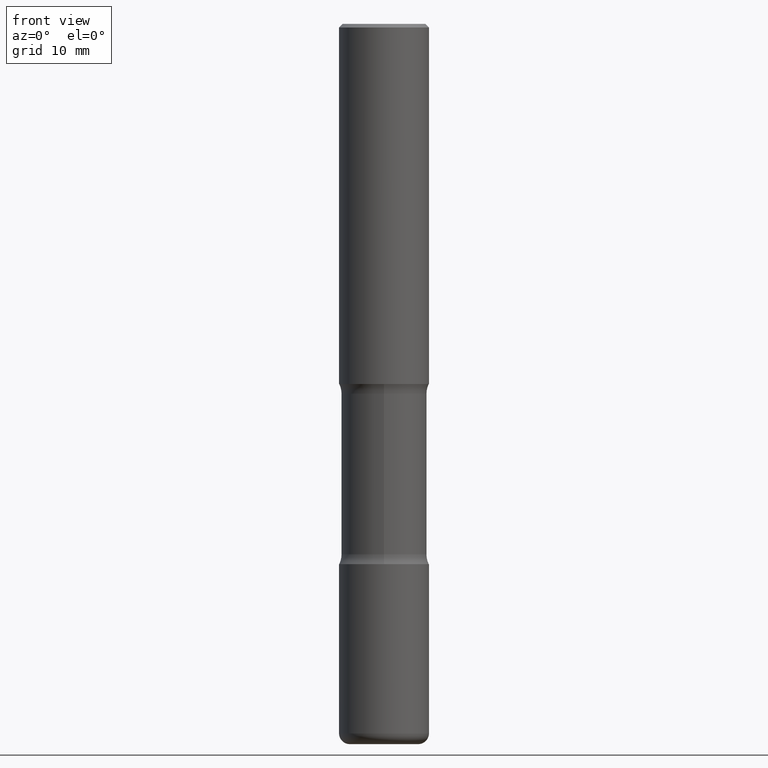
[diagram: clean part render]
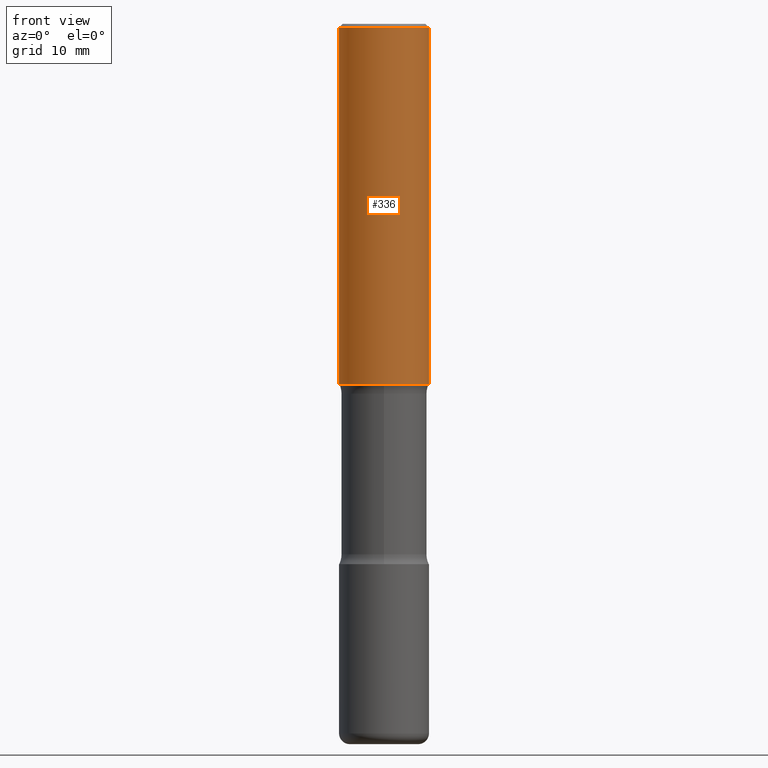
[diagram: same view with one face highlighted and labeled with its STEP entity id]
A machine part, front view. The second image highlights one B-rep face of the part: STEP entity #336.
In plain terms, the highlighted cylindrical surface (partial cylindrical patch) has radius 6.35 mm, axis along (-0, 0, 1).
Its self-contained STEP definition (entity closure, byte-faithful):
#29 = FACE_OUTER_BOUND ( 'NONE', #460, .T. ) ;
#33 = ORIENTED_EDGE ( 'NONE', *, *, #485, .T. ) ;
#42 = CARTESIAN_POINT ( 'NONE',  ( 0.2499999999999999167, -1.784954126219745400E-15, -0.02000000000000006981 ) ) ;
#43 = CIRCLE ( 'NONE', #137, 0.2499999999999999167 ) ;
#50 = AXIS2_PLACEMENT_3D ( 'NONE', #420, #321, #142 ) ;
#56 = DIRECTION ( 'NONE',  ( 1.000000000000000000, -6.982962677686267499E-15, 4.876176775795935793E-29 ) ) ;
#64 = DIRECTION ( 'NONE',  ( -2.445468806185136877E-29, 3.491481338843145188E-15, 1.000000000000000000 ) ) ;
#67 = CARTESIAN_POINT ( 'NONE',  ( 0.000000000000000000, 0.000000000000000000, 0.000000000000000000 ) ) ;
#85 = EDGE_CURVE ( 'NONE', #158, #426, #455, .T. ) ;
#119 = CARTESIAN_POINT ( 'NONE',  ( 4.890937612370289799E-31, -6.982962677686315028E-17, -0.02000000000000006981 ) ) ;
#133 = EDGE_CURVE ( 'NONE', #483, #197, #43, .T. ) ;
#137 = AXIS2_PLACEMENT_3D ( 'NONE', #119, #167, #476 ) ;
#142 = DIRECTION ( 'NONE',  ( 1.000000000000000000, -6.982962677686265922E-15, 0.000000000000000000 ) ) ;
#148 = CYLINDRICAL_SURFACE ( 'NONE', #363, 0.2500000000000000555 ) ;
#155 = VECTOR ( 'NONE', #156, 39.37007874015748143 ) ;
#156 = DIRECTION ( 'NONE',  ( -2.445468806185136877E-29, 3.491481338843145188E-15, 1.000000000000000000 ) ) ;
#158 = VERTEX_POINT ( 'NONE', #220 ) ;
#167 = DIRECTION ( 'NONE',  ( -2.445468806185136597E-29, 3.491481338843145583E-15, 1.000000000000000000 ) ) ;
#197 = VERTEX_POINT ( 'NONE', #42 ) ;
#203 = CARTESIAN_POINT ( 'NONE',  ( -0.2500000000000000555, 1.776356839400250859E-15, -1.229733772563726866E-29 ) ) ;
#220 = CARTESIAN_POINT ( 'NONE',  ( -0.2500000000000001665, -1.750039312831323809E-15, -2.000000000000000000 ) ) ;
#230 = ORIENTED_EDGE ( 'NONE', *, *, #491, .F. ) ;
#247 = LINE ( 'NONE', #424, #449 ) ;
#251 = ORIENTED_EDGE ( 'NONE', *, *, #85, .T. ) ;
#303 = CARTESIAN_POINT ( 'NONE',  ( -0.2499999999999999167, 1.675911042644703182E-15, -0.02000000000000006981 ) ) ;
#321 = DIRECTION ( 'NONE',  ( -2.445468806185136597E-29, 3.491481338843145583E-15, 1.000000000000000000 ) ) ;
#334 = DIRECTION ( 'NONE',  ( -2.445468806185136597E-29, 3.491481338843145583E-15, 1.000000000000000000 ) ) ;
#336 = ADVANCED_FACE ( 'NONE', ( #29 ), #148, .T. ) ;
#338 = LINE ( 'NONE', #203, #155 ) ;
#363 = AXIS2_PLACEMENT_3D ( 'NONE', #67, #334, #56 ) ;
#420 = CARTESIAN_POINT ( 'NONE',  ( 4.890937612370273194E-29, -6.982962677686291165E-15, -2.000000000000000000 ) ) ;
#424 = CARTESIAN_POINT ( 'NONE',  ( 0.2500000000000000555, -1.745740669421567269E-15, 1.219044193948984228E-29 ) ) ;
#426 = VERTEX_POINT ( 'NONE', #494 ) ;
#449 = VECTOR ( 'NONE', #64, 39.37007874015748143 ) ;
#455 = CIRCLE ( 'NONE', #50, 0.2500000000000001665 ) ;
#460 = EDGE_LOOP ( 'NONE', ( #230, #251, #33, #556 ) ) ;
#476 = DIRECTION ( 'NONE',  ( 1.000000000000000000, -6.982962677686267499E-15, 0.000000000000000000 ) ) ;
#483 = VERTEX_POINT ( 'NONE', #303 ) ;
#485 = EDGE_CURVE ( 'NONE', #426, #197, #247, .T. ) ;
#491 = EDGE_CURVE ( 'NONE', #158, #483, #338, .T. ) ;
#494 = CARTESIAN_POINT ( 'NONE',  ( 0.2500000000000001665, -8.728703347107858632E-15, -2.000000000000000000 ) ) ;
#556 = ORIENTED_EDGE ( 'NONE', *, *, #133, .F. ) ;